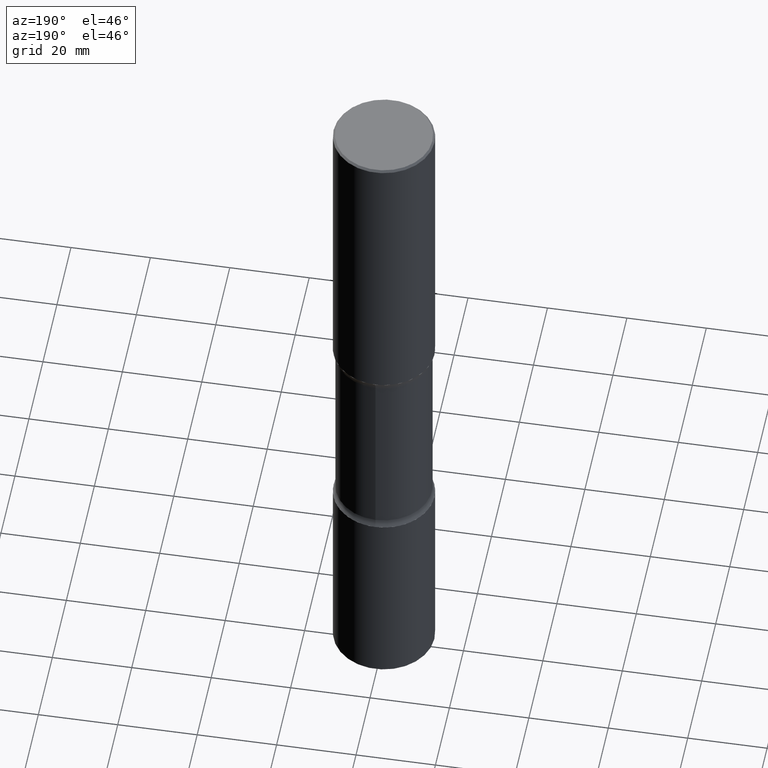
[diagram: clean part render]
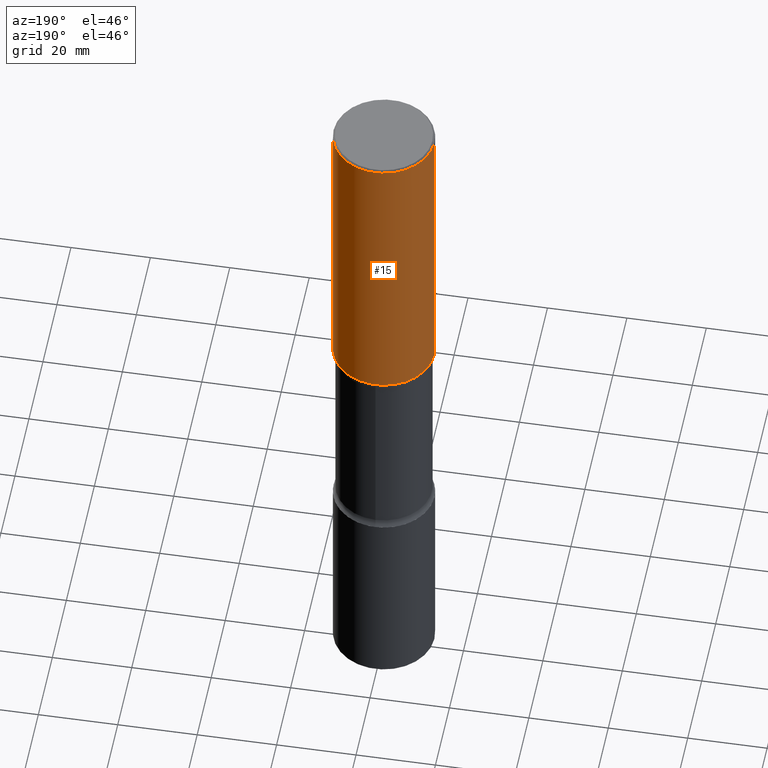
[diagram: same view with one face highlighted and labeled with its STEP entity id]
A machine part, auxiliary view. The second image highlights one B-rep face of the part: STEP entity #15.
In plain terms, the highlighted cylindrical surface (partial cylindrical patch) has radius 12.7 mm, axis along (-0, 0, 1).
Its self-contained STEP definition (entity closure, byte-faithful):
#15 = ADVANCED_FACE ( 'NONE', ( #533 ), #141, .T. ) ;
#34 = EDGE_CURVE ( 'NONE', #131, #406, #543, .T. ) ;
#109 = CARTESIAN_POINT ( 'NONE',  ( 4.890937612370306439E-31, -6.982962677686338448E-17, -0.02000000000000013572 ) ) ;
#112 = DIRECTION ( 'NONE',  ( 1.000000000000000000, -6.982962677686266711E-15, 0.000000000000000000 ) ) ;
#128 = CARTESIAN_POINT ( 'NONE',  ( 7.336406418555407548E-29, -1.047444401652943320E-14, -2.999999999999999112 ) ) ;
#131 = VERTEX_POINT ( 'NONE', #194 ) ;
#135 = EDGE_LOOP ( 'NONE', ( #266, #479, #155, #140 ) ) ;
#140 = ORIENTED_EDGE ( 'NONE', *, *, #313, .F. ) ;
#141 = CYLINDRICAL_SURFACE ( 'NONE', #247, 0.5000000000000001110 ) ;
#155 = ORIENTED_EDGE ( 'NONE', *, *, #489, .F. ) ;
#175 = DIRECTION ( 'NONE',  ( 1.000000000000000000, -6.982962677686267499E-15, 0.000000000000000000 ) ) ;
#194 = CARTESIAN_POINT ( 'NONE',  ( -0.5000000000000002220, -1.719423142852643572E-15, -2.999999999999999112 ) ) ;
#242 = VERTEX_POINT ( 'NONE', #299 ) ;
#247 = AXIS2_PLACEMENT_3D ( 'NONE', #324, #486, #380 ) ;
#256 = DIRECTION ( 'NONE',  ( -2.445468806185136877E-29, 3.491481338843145188E-15, 1.000000000000000000 ) ) ;
#265 = CIRCLE ( 'NONE', #550, 0.5000000000000002220 ) ;
#266 = ORIENTED_EDGE ( 'NONE', *, *, #328, .T. ) ;
#285 = CARTESIAN_POINT ( 'NONE',  ( -0.5000000000000001110, 3.552713678800501718E-15, -2.459467545127453732E-29 ) ) ;
#299 = CARTESIAN_POINT ( 'NONE',  ( 0.5000000000000002220, -1.396592535537256813E-14, -2.999999999999999112 ) ) ;
#313 = EDGE_CURVE ( 'NONE', #242, #347, #351, .T. ) ;
#317 = DIRECTION ( 'NONE',  ( -2.445468806185136597E-29, 3.491481338843145583E-15, 1.000000000000000000 ) ) ;
#324 = CARTESIAN_POINT ( 'NONE',  ( 0.000000000000000000, 0.000000000000000000, 0.000000000000000000 ) ) ;
#328 = EDGE_CURVE ( 'NONE', #242, #131, #265, .T. ) ;
#336 = CIRCLE ( 'NONE', #430, 0.4999999999999999445 ) ;
#347 = VERTEX_POINT ( 'NONE', #407 ) ;
#351 = LINE ( 'NONE', #516, #437 ) ;
#373 = VECTOR ( 'NONE', #421, 39.37007874015748143 ) ;
#380 = DIRECTION ( 'NONE',  ( 1.000000000000000000, -6.982962677686267499E-15, 4.876176775795935793E-29 ) ) ;
#406 = VERTEX_POINT ( 'NONE', #541 ) ;
#407 = CARTESIAN_POINT ( 'NONE',  ( 0.4999999999999999445, -3.500078625662628685E-15, -0.02000000000000013572 ) ) ;
#421 = DIRECTION ( 'NONE',  ( -2.445468806185136877E-29, 3.491481338843145188E-15, 1.000000000000000000 ) ) ;
#425 = DIRECTION ( 'NONE',  ( -2.445468806185136597E-29, 3.491481338843145583E-15, 1.000000000000000000 ) ) ;
#430 = AXIS2_PLACEMENT_3D ( 'NONE', #109, #425, #112 ) ;
#437 = VECTOR ( 'NONE', #256, 39.37007874015748143 ) ;
#479 = ORIENTED_EDGE ( 'NONE', *, *, #34, .T. ) ;
#486 = DIRECTION ( 'NONE',  ( -2.445468806185136597E-29, 3.491481338843145583E-15, 1.000000000000000000 ) ) ;
#489 = EDGE_CURVE ( 'NONE', #347, #406, #336, .T. ) ;
#516 = CARTESIAN_POINT ( 'NONE',  ( 0.5000000000000001110, -3.491481338843134539E-15, 2.438088387897968457E-29 ) ) ;
#533 = FACE_OUTER_BOUND ( 'NONE', #135, .T. ) ;
#541 = CARTESIAN_POINT ( 'NONE',  ( -0.4999999999999999445, 3.421651712066269663E-15, -0.02000000000000013572 ) ) ;
#543 = LINE ( 'NONE', #285, #373 ) ;
#550 = AXIS2_PLACEMENT_3D ( 'NONE', #128, #317, #175 ) ;